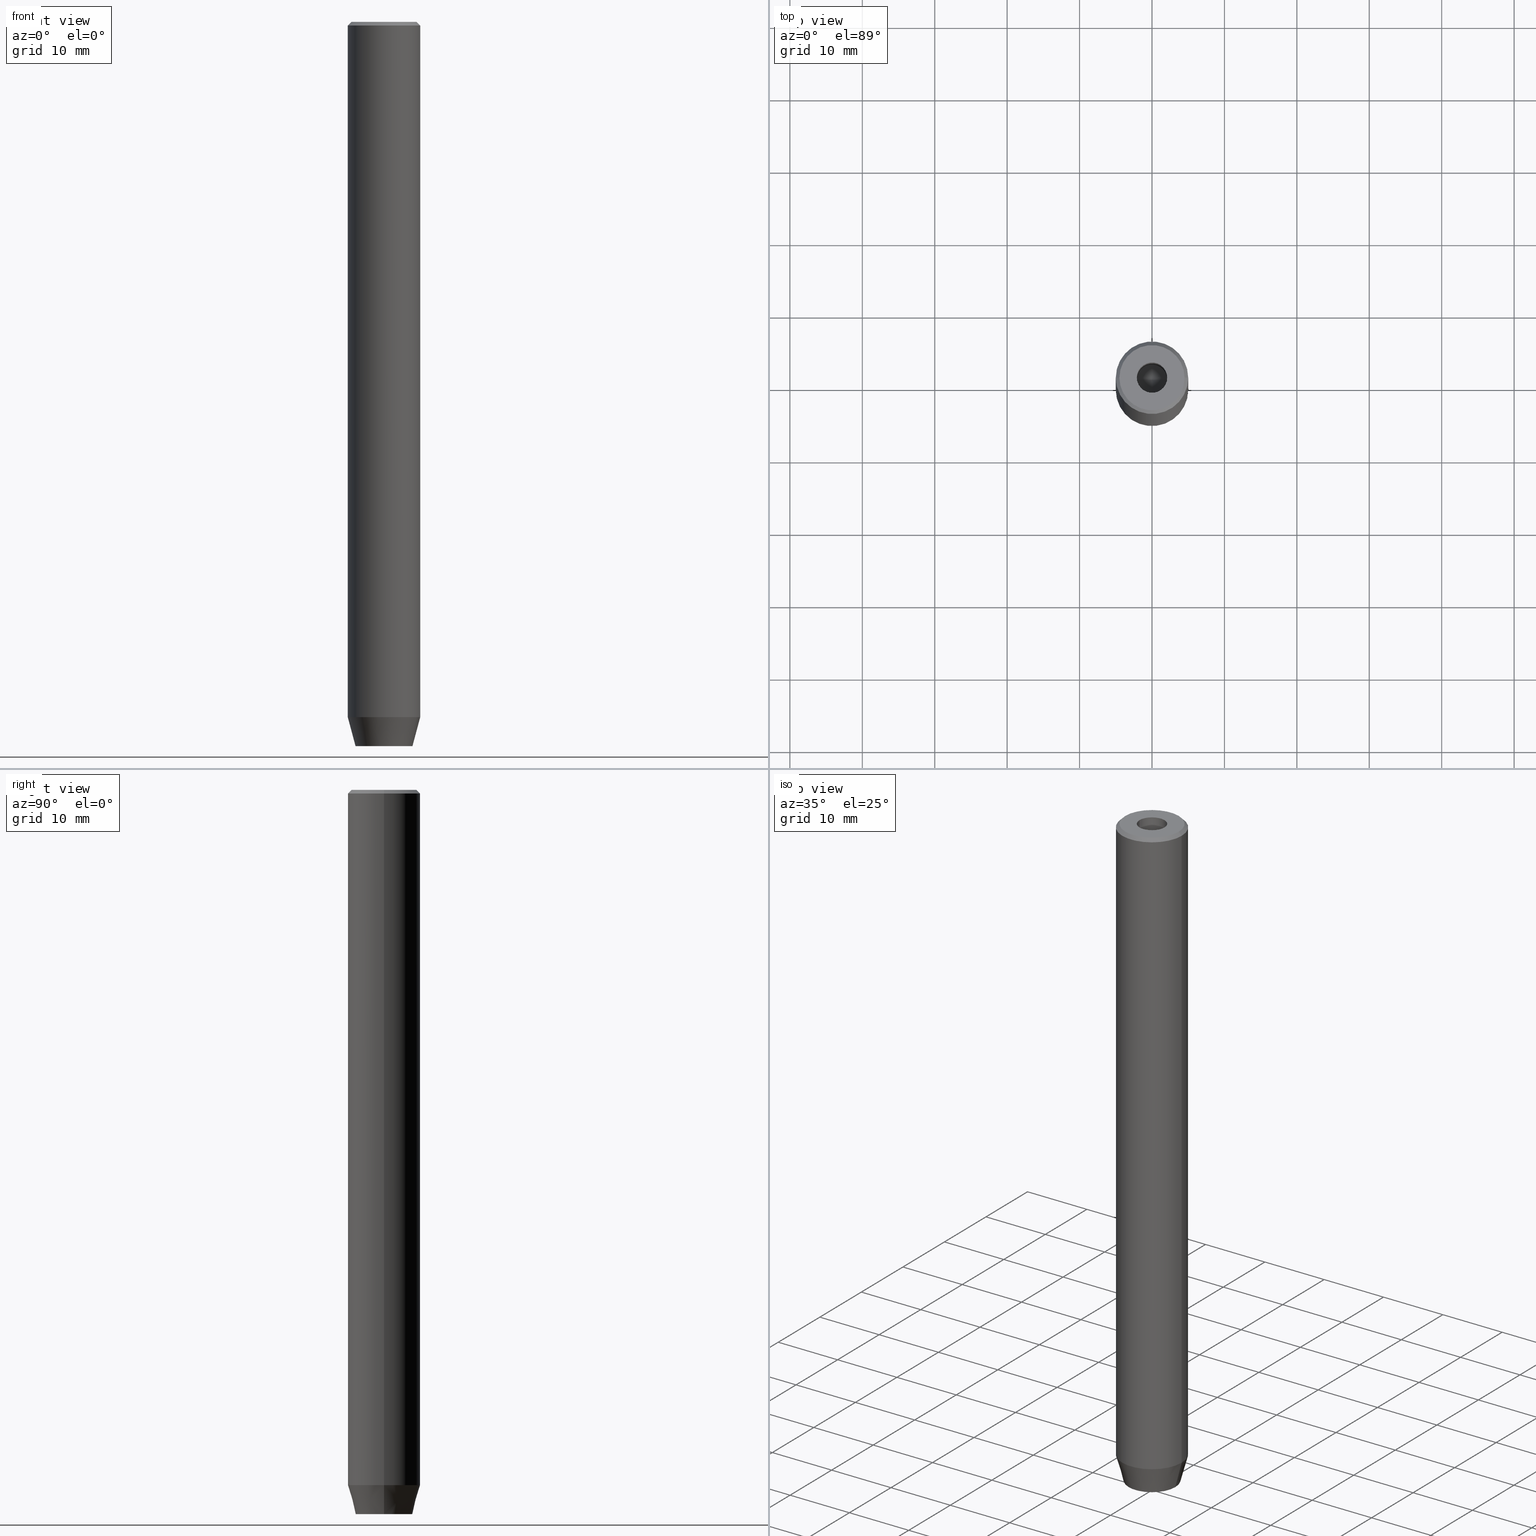
[diagram: canonical four-view strip — front | top / right | iso, engineering-drawing reading convention]
A machine part, canonical four-view strip (front | top / right | iso — engineering-drawing reading convention). The complete STEP part file that produces these views, byte-faithful:
ISO-10303-21;
HEADER;
FILE_DESCRIPTION (( 'STEP AP203' ),
    '1' );
FILE_NAME ('971d.STEP',
    '2024-01-02T21:57:42',
    ( '' ),
    ( '' ),
    'SwSTEP 2.0',
    'SolidWorks 2019',
    '' );
FILE_SCHEMA (( 'CONFIG_CONTROL_DESIGN' ));
ENDSEC;

DATA;
#1 = EDGE_LOOP ( 'NONE', ( #557, #401, #285, #84, #525, #576 ) ) ;
#2 = EDGE_CURVE ( 'NONE', #250, #122, #245, .T. ) ;
#3 = CARTESIAN_POINT ( 'NONE',  ( 5.000000000000000000, 0.000000000000000000, 0.000000000000000000 ) ) ;
#4 = EDGE_LOOP ( 'NONE', ( #151, #197, #271, #32 ) ) ;
#5 = CARTESIAN_POINT ( 'NONE',  ( 2.000000000000000888, -1.154700538379252572, -97.20000000000000284 ) ) ;
#6 = FACE_OUTER_BOUND ( 'NONE', #238, .T. ) ;
#7 = EDGE_CURVE ( 'NONE', #330, #459, #223, .T. ) ;
#8 = VECTOR ( 'NONE', #89, 1000.000000000000000 ) ;
#9 = ORIENTED_EDGE ( 'NONE', *, *, #164, .F. ) ;
#10 = DIRECTION ( 'NONE',  ( -0.000000000000000000, -0.000000000000000000, 1.000000000000000000 ) ) ;
#11 = PLANE ( 'NONE',  #424 ) ;
#12 = CARTESIAN_POINT ( 'NONE',  ( -1.000000000000000444, 1.732050807568877637, -97.20000000000000284 ) ) ;
#13 = VERTEX_POINT ( 'NONE', #335 ) ;
#14 = DATE_AND_TIME ( #190, #72 ) ;
#15 = EDGE_CURVE ( 'NONE', #587, #43, #141, .T. ) ;
#16 = VECTOR ( 'NONE', #329, 1000.000000000000000 ) ;
#17 = VERTEX_POINT ( 'NONE', #205 ) ;
#18 = PERSON_AND_ORGANIZATION ( #24, #260 ) ;
#19 = DIRECTION ( 'NONE',  ( -0.5000000000000001110, 0.8660254037844385966, 0.000000000000000000 ) ) ;
#20 = ORIENTED_EDGE ( 'NONE', *, *, #265, .T. ) ;
#21 = PERSON_AND_ORGANIZATION_ROLE ( 'classification_officer' ) ;
#22 = EDGE_CURVE ( 'NONE', #348, #573, #254, .T. ) ;
#23 = APPROVAL_PERSON_ORGANIZATION ( #101, #445, #63 ) ;
#24 = PERSON ( 'NEUR�EN�', 'NEUR�EN�', 'NEUR�EN�', ('NEUR�EN�'), ('NEUR�EN�'), ('NEUR�EN�') ) ;
#25 = DIRECTION ( 'NONE',  ( 0.4999999999999996669, -0.8660254037844388186, 0.000000000000000000 ) ) ;
#26 = APPROVAL_DATE_TIME ( #365, #407 ) ;
#27 = VECTOR ( 'NONE', #399, 1000.000000000000000 ) ;
#28 = FACE_OUTER_BOUND ( 'NONE', #467, .T. ) ;
#29 = DIRECTION ( 'NONE',  ( 1.000000000000000000, 0.000000000000000000, 0.000000000000000000 ) ) ;
#30 = ORIENTED_EDGE ( 'NONE', *, *, #176, .T. ) ;
#31 = DIRECTION ( 'NONE',  ( 0.7071067811865450192, 8.659560562354902043E-17, -0.7071067811865500152 ) ) ;
#32 = ORIENTED_EDGE ( 'NONE', *, *, #269, .T. ) ;
#33 = CARTESIAN_POINT ( 'NONE',  ( 2.099999999999996980, 0.000000000000000000, -15.00000000000000000 ) ) ;
#34 = DIRECTION ( 'NONE',  ( 1.000000000000000000, 0.000000000000000000, 0.000000000000000000 ) ) ;
#35 = VECTOR ( 'NONE', #37, 1000.000000000000000 ) ;
#36 = EDGE_LOOP ( 'NONE', ( #496, #428, #569, #280 ) ) ;
#37 = DIRECTION ( 'NONE',  ( 5.633679745264339711E-16, 1.000000000000000000, 0.000000000000000000 ) ) ;
#38 = ORIENTED_EDGE ( 'NONE', *, *, #61, .T. ) ;
#39 = AXIS2_PLACEMENT_3D ( 'NONE', #231, #395, #540 ) ;
#40 = ORIENTED_EDGE ( 'NONE', *, *, #544, .T. ) ;
#41 = ADVANCED_FACE ( 'NONE', ( #211 ), #263, .F. ) ;
#42 = CARTESIAN_POINT ( 'NONE',  ( 4.500000000000017764, 5.817072295949938273E-16, 0.000000000000000000 ) ) ;
#43 = VERTEX_POINT ( 'NONE', #534 ) ;
#44 = VECTOR ( 'NONE', #111, 1000.000000000000000 ) ;
#45 = CARTESIAN_POINT ( 'NONE',  ( 5.000000000000000000, 0.000000000000000000, -96.00000000000000000 ) ) ;
#46 = VECTOR ( 'NONE', #454, 999.9999999999998863 ) ;
#47 = DIRECTION ( 'NONE',  ( -0.000000000000000000, -0.000000000000000000, 1.000000000000000000 ) ) ;
#48 = LINE ( 'NONE', #3, #492 ) ;
#49 =( NAMED_UNIT ( * ) PLANE_ANGLE_UNIT ( ) SI_UNIT ( $, .RADIAN. ) );
#50 = EDGE_CURVE ( 'NONE', #71, #538, #48, .T. ) ;
#51 = DIRECTION ( 'NONE',  ( -0.000000000000000000, -0.000000000000000000, 1.000000000000000000 ) ) ;
#52 = CYLINDRICAL_SURFACE ( 'NONE', #298, 5.000000000000000000 ) ;
#53 = DIRECTION ( 'NONE',  ( -0.000000000000000000, -0.000000000000000000, -1.000000000000000000 ) ) ;
#54 = DIRECTION ( 'NONE',  ( 0.000000000000000000, 0.000000000000000000, -1.000000000000000000 ) ) ;
#55 = DIRECTION ( 'NONE',  ( -0.000000000000000000, -0.000000000000000000, 1.000000000000000000 ) ) ;
#56 = AXIS2_PLACEMENT_3D ( 'NONE', #97, #51, #312 ) ;
#57 = CARTESIAN_POINT ( 'NONE',  ( 0.000000000000000000, 2.309401076758503812, -97.20000000000000284 ) ) ;
#58 = ORIENTED_EDGE ( 'NONE', *, *, #176, .F. ) ;
#59 = CARTESIAN_POINT ( 'NONE',  ( 2.000000000000000888, 0.000000000000000000, -97.20000000000000284 ) ) ;
#60 = CARTESIAN_POINT ( 'NONE',  ( 2.000000000000000888, 1.154700538379251462, -97.20000000000000284 ) ) ;
#61 = EDGE_CURVE ( 'NONE', #43, #163, #347, .T. ) ;
#62 = CARTESIAN_POINT ( 'NONE',  ( 2.168404344971008868E-16, -2.309401076758503812, -97.20000000000000284 ) ) ;
#63 = APPROVAL_ROLE ( '' ) ;
#64 = VECTOR ( 'NONE', #93, 1000.000000000000114 ) ;
#65 = AXIS2_PLACEMENT_3D ( 'NONE', #533, #520, #110 ) ;
#66 = ORIENTED_EDGE ( 'NONE', *, *, #350, .T. ) ;
#67 = ADVANCED_FACE ( 'NONE', ( #169 ), #105, .T. ) ;
#68 = DIRECTION ( 'NONE',  ( -0.000000000000000000, -0.000000000000000000, 1.000000000000000000 ) ) ;
#69 = DIRECTION ( 'NONE',  ( 1.000000000000000000, 0.000000000000000000, 0.000000000000000000 ) ) ;
#70 = ORIENTED_EDGE ( 'NONE', *, *, #185, .F. ) ;
#71 = VERTEX_POINT ( 'NONE', #45 ) ;
#72 = LOCAL_TIME ( 22, 57, 42.00000000000000000, #568 ) ;
#73 = LINE ( 'NONE', #33, #384 ) ;
#74 = PERSON_AND_ORGANIZATION ( #24, #260 ) ;
#75 = CIRCLE ( 'NONE', #586, 3.928203230275506996 ) ;
#76 = DIRECTION ( 'NONE',  ( 0.000000000000000000, 0.000000000000000000, -1.000000000000000000 ) ) ;
#77 = ORIENTED_EDGE ( 'NONE', *, *, #526, .F. ) ;
#78 = LINE ( 'NONE', #334, #570 ) ;
#79 = EDGE_CURVE ( 'NONE', #235, #167, #134, .T. ) ;
#80 = ORIENTED_EDGE ( 'NONE', *, *, #15, .F. ) ;
#81 = CARTESIAN_POINT ( 'NONE',  ( -1.000000000000000222, -1.732050807568877637, -97.20000000000000284 ) ) ;
#82 = LINE ( 'NONE', #299, #8 ) ;
#83 = AXIS2_PLACEMENT_3D ( 'NONE', #152, #76, #297 ) ;
#84 = ORIENTED_EDGE ( 'NONE', *, *, #79, .T. ) ;
#85 = APPLICATION_CONTEXT ( 'configuration controlled 3d designs of mechanical parts and assemblies' ) ;
#86 = EDGE_CURVE ( 'NONE', #416, #412, #214, .T. ) ;
#87 = ORIENTED_EDGE ( 'NONE', *, *, #22, .T. ) ;
#88 = CARTESIAN_POINT ( 'NONE',  ( 0.000000000000000000, 2.309401076758503812, -97.20000000000000284 ) ) ;
#89 = DIRECTION ( 'NONE',  ( -0.000000000000000000, -0.000000000000000000, 1.000000000000000000 ) ) ;
#90 = DIRECTION ( 'NONE',  ( 1.000000000000000000, 0.000000000000000000, 0.000000000000000000 ) ) ;
#91 = CARTESIAN_POINT ( 'NONE',  ( 0.000000000000000000, 0.000000000000000000, -96.00000000000000000 ) ) ;
#92 = DIRECTION ( 'NONE',  ( 5.633679745264339711E-16, 1.000000000000000000, 0.000000000000000000 ) ) ;
#93 = DIRECTION ( 'NONE',  ( -0.2588190451025210725, 3.169619151431769255E-17, 0.9659258262890680902 ) ) ;
#94 = ORIENTED_EDGE ( 'NONE', *, *, #50, .F. ) ;
#95 = DIRECTION ( 'NONE',  ( -0.000000000000000000, -0.000000000000000000, -1.000000000000000000 ) ) ;
#96 = LINE ( 'NONE', #88, #196 ) ;
#97 = CARTESIAN_POINT ( 'NONE',  ( 0.000000000000000000, 0.000000000000000000, 0.000000000000000000 ) ) ;
#98 = APPROVAL_ROLE ( '' ) ;
#99 = ORIENTED_EDGE ( 'NONE', *, *, #450, .F. ) ;
#100 = DIRECTION ( 'NONE',  ( -1.000000000000000000, 0.000000000000000000, 0.000000000000000000 ) ) ;
#101 = PERSON_AND_ORGANIZATION ( #24, #260 ) ;
#102 = ADVANCED_FACE ( 'NONE', ( #499 ), #264, .T. ) ;
#103 = ORIENTED_EDGE ( 'NONE', *, *, #514, .F. ) ;
#104 = PERSON_AND_ORGANIZATION ( #24, #260 ) ;
#105 = CONICAL_SURFACE ( 'NONE', #142, 5.000000000000000000, 0.2617993877991497964 ) ;
#106 = CARTESIAN_POINT ( 'NONE',  ( 0.000000000000000000, 0.000000000000000000, 0.000000000000000000 ) ) ;
#107 = CIRCLE ( 'NONE', #256, 5.000000000000000000 ) ;
#108 = DATE_AND_TIME ( #519, #208 ) ;
#109 = DIRECTION ( 'NONE',  ( 1.000000000000000000, 0.000000000000000000, 0.000000000000000000 ) ) ;
#110 = DIRECTION ( 'NONE',  ( 1.000000000000000000, 0.000000000000000000, 0.000000000000000000 ) ) ;
#111 = DIRECTION ( 'NONE',  ( -0.000000000000000000, -0.000000000000000000, -1.000000000000000000 ) ) ;
#112 = LINE ( 'NONE', #291, #509 ) ;
#113 = APPROVAL_PERSON_ORGANIZATION ( #18, #455, #369 ) ;
#114 = VERTEX_POINT ( 'NONE', #130 ) ;
#115 = ADVANCED_FACE ( 'NONE', ( #542 ), #52, .T. ) ;
#116 = CARTESIAN_POINT ( 'NONE',  ( 1.000000000000000444, 1.732050807568877637, -97.20000000000000284 ) ) ;
#117 = ORIENTED_EDGE ( 'NONE', *, *, #435, .F. ) ;
#118 = DIRECTION ( 'NONE',  ( -0.000000000000000000, -0.000000000000000000, 1.000000000000000000 ) ) ;
#119 = DIRECTION ( 'NONE',  ( 0.000000000000000000, 0.000000000000000000, -1.000000000000000000 ) ) ;
#120 = DIRECTION ( 'NONE',  ( 1.000000000000000000, 0.000000000000000000, 0.000000000000000000 ) ) ;
#121 = EDGE_CURVE ( 'NONE', #250, #183, #219, .T. ) ;
#122 = VERTEX_POINT ( 'NONE', #42 ) ;
#123 = DIRECTION ( 'NONE',  ( 1.000000000000000000, 0.000000000000000000, 0.000000000000000000 ) ) ;
#124 = AXIS2_PLACEMENT_3D ( 'NONE', #221, #178, #353 ) ;
#125 = DIRECTION ( 'NONE',  ( 1.000000000000000000, 0.000000000000000000, 0.000000000000000000 ) ) ;
#126 = ORIENTED_EDGE ( 'NONE', *, *, #7, .F. ) ;
#127 = DIRECTION ( 'NONE',  ( 1.000000000000000000, 0.000000000000000000, 0.000000000000000000 ) ) ;
#128 = EDGE_CURVE ( 'NONE', #355, #416, #224, .T. ) ;
#129 = VECTOR ( 'NONE', #447, 1000.000000000000114 ) ;
#130 = CARTESIAN_POINT ( 'NONE',  ( 0.000000000000000000, 2.309401076758503812, -100.0000000000000000 ) ) ;
#131 = AXIS2_PLACEMENT_3D ( 'NONE', #466, #458, #69 ) ;
#132 = CARTESIAN_POINT ( 'NONE',  ( -1.999999999999997780, 1.154700538379253238, -100.0000000000000000 ) ) ;
#133 = DIRECTION ( 'NONE',  ( 0.8660254037844385966, -0.5000000000000001110, 0.000000000000000000 ) ) ;
#134 = LINE ( 'NONE', #303, #129 ) ;
#135 = ADVANCED_FACE ( 'NONE', ( #172 ), #344, .F. ) ;
#136 = ORIENTED_EDGE ( 'NONE', *, *, #7, .T. ) ;
#137 = PLANE ( 'NONE',  #39 ) ;
#138 = LINE ( 'NONE', #308, #537 ) ;
#139 = PRODUCT_DEFINITION ( 'NEZN�M�', '', #157, #379 ) ;
#140 = DIRECTION ( 'NONE',  ( -0.000000000000000000, -0.000000000000000000, 1.000000000000000000 ) ) ;
#141 = CIRCLE ( 'NONE', #471, 3.928203230275506996 ) ;
#142 = AXIS2_PLACEMENT_3D ( 'NONE', #393, #309, #125 ) ;
#143 = ORIENTED_EDGE ( 'NONE', *, *, #477, .T. ) ;
#144 = ORIENTED_EDGE ( 'NONE', *, *, #265, .F. ) ;
#145 = DIRECTION ( 'NONE',  ( -1.000000000000000000, 0.000000000000000000, -0.000000000000000000 ) ) ;
#146 = ORIENTED_EDGE ( 'NONE', *, *, #2, .F. ) ;
#147 = CC_DESIGN_PERSON_AND_ORGANIZATION_ASSIGNMENT ( #74, #21, ( #220 ) ) ;
#148 = PERSON_AND_ORGANIZATION_ROLE ( 'creator' ) ;
#149 = DIRECTION ( 'NONE',  ( -0.8660254037844385966, -0.5000000000000001110, 0.000000000000000000 ) ) ;
#150 = COORDINATED_UNIVERSAL_TIME_OFFSET ( 1, 0, .AHEAD. ) ;
#151 = ORIENTED_EDGE ( 'NONE', *, *, #491, .F. ) ;
#152 = CARTESIAN_POINT ( 'NONE',  ( 0.000000000000000000, 0.000000000000000000, -0.4999999999999857891 ) ) ;
#153 = VERTEX_POINT ( 'NONE', #315 ) ;
#154 = CARTESIAN_POINT ( 'NONE',  ( 0.000000000000000000, 0.000000000000000000, -15.00000000000000000 ) ) ;
#155 = EDGE_CURVE ( 'NONE', #573, #114, #323, .T. ) ;
#156 = CARTESIAN_POINT ( 'NONE',  ( -1.999999999999998668, -1.154700538379252572, -100.0000000000000000 ) ) ;
#157 = PRODUCT_DEFINITION_FORMATION_WITH_SPECIFIED_SOURCE ( 'LIBOVOLN�', '', #539, .NOT_KNOWN. ) ;
#158 = DIRECTION ( 'NONE',  ( 0.8660254037844385966, 0.5000000000000001110, 0.000000000000000000 ) ) ;
#159 = ORIENTED_EDGE ( 'NONE', *, *, #15, .T. ) ;
#160 = VECTOR ( 'NONE', #385, 1000.000000000000114 ) ;
#161 = PLANE ( 'NONE',  #225 ) ;
#162 = DIRECTION ( 'NONE',  ( 1.000000000000000000, 0.000000000000000000, 0.000000000000000000 ) ) ;
#163 = VERTEX_POINT ( 'NONE', #518 ) ;
#164 = EDGE_CURVE ( 'NONE', #459, #330, #392, .T. ) ;
#165 = LINE ( 'NONE', #210, #16 ) ;
#166 = DIRECTION ( 'NONE',  ( -0.000000000000000000, -0.000000000000000000, 1.000000000000000000 ) ) ;
#167 = VERTEX_POINT ( 'NONE', #62 ) ;
#168 = LINE ( 'NONE', #498, #273 ) ;
#169 = FACE_OUTER_BOUND ( 'NONE', #261, .T. ) ;
#170 = AXIS2_PLACEMENT_3D ( 'NONE', #340, #54, #145 ) ;
#171 = AXIS2_PLACEMENT_3D ( 'NONE', #294, #243, #34 ) ;
#172 = FACE_OUTER_BOUND ( 'NONE', #434, .T. ) ;
#173 = PLANE ( 'NONE',  #229 ) ;
#174 = CARTESIAN_POINT ( 'NONE',  ( 0.000000000000000000, 0.000000000000000000, 0.000000000000000000 ) ) ;
#175 = CARTESIAN_POINT ( 'NONE',  ( 5.000000000000000000, 0.000000000000000000, -0.4999999999999857891 ) ) ;
#176 = EDGE_CURVE ( 'NONE', #330, #17, #404, .T. ) ;
#177 = CARTESIAN_POINT ( 'NONE',  ( -5.000000000000000000, 6.123233995736766282E-16, -96.00000000000000000 ) ) ;
#178 = DIRECTION ( 'NONE',  ( -1.000000000000000000, 5.633679745264339711E-16, 0.000000000000000000 ) ) ;
#179 = ADVANCED_FACE ( 'NONE', ( #552 ), #473, .T. ) ;
#180 = AXIS2_PLACEMENT_3D ( 'NONE', #154, #118, #580 ) ;
#181 = ORIENTED_EDGE ( 'NONE', *, *, #242, .T. ) ;
#182 = FACE_OUTER_BOUND ( 'NONE', #321, .T. ) ;
#183 = VERTEX_POINT ( 'NONE', #279 ) ;
#184 = DIRECTION ( 'NONE',  ( 0.8660254037844385966, -0.5000000000000001110, 0.000000000000000000 ) ) ;
#185 = EDGE_CURVE ( 'NONE', #587, #71, #206, .T. ) ;
#186 = CARTESIAN_POINT ( 'NONE',  ( -2.099999999999997868, 2.571758278209438999E-16, 0.000000000000000000 ) ) ;
#187 = ORIENTED_EDGE ( 'NONE', *, *, #427, .T. ) ;
#188 = DIRECTION ( 'NONE',  ( -0.000000000000000000, 0.000000000000000000, -1.000000000000000000 ) ) ;
#189 = CARTESIAN_POINT ( 'NONE',  ( 0.000000000000000000, 0.000000000000000000, -97.20000000000000284 ) ) ;
#190 = CALENDAR_DATE ( 2024, 2, 1 ) ;
#191 = EDGE_LOOP ( 'NONE', ( #443, #336 ) ) ;
#192 = LOCAL_TIME ( 22, 57, 42.00000000000000000, #468 ) ;
#193 = PLANE ( 'NONE',  #124 ) ;
#194 = PERSON_AND_ORGANIZATION ( #24, #260 ) ;
#195 = APPROVAL_DATE_TIME ( #14, #445 ) ;
#196 = VECTOR ( 'NONE', #53, 1000.000000000000000 ) ;
#197 = ORIENTED_EDGE ( 'NONE', *, *, #529, .T. ) ;
#198 = EDGE_LOOP ( 'NONE', ( #126, #30, #440, #117 ) ) ;
#199 = COORDINATED_UNIVERSAL_TIME_OFFSET ( 1, 0, .AHEAD. ) ;
#200 = FACE_OUTER_BOUND ( 'NONE', #345, .T. ) ;
#201 = PERSON_AND_ORGANIZATION ( #24, #260 ) ;
#202 = EDGE_LOOP ( 'NONE', ( #300, #319, #283, #460 ) ) ;
#203 = PLANE ( 'NONE',  #247 ) ;
#204 = PRODUCT_RELATED_PRODUCT_CATEGORY ( 'detail', '', ( #539 ) ) ;
#205 = CARTESIAN_POINT ( 'NONE',  ( -2.099999999999998757, 2.571758278209439985E-16, -1.990051048614449116E-16 ) ) ;
#206 = LINE ( 'NONE', #431, #160 ) ;
#207 = DIRECTION ( 'NONE',  ( 0.5000000000000001110, 0.8660254037844385966, -0.000000000000000000 ) ) ;
#208 = LOCAL_TIME ( 22, 57, 42.00000000000000000, #199 ) ;
#209 = ADVANCED_FACE ( 'NONE', ( #479 ), #343, .T. ) ;
#210 = CARTESIAN_POINT ( 'NONE',  ( 2.168404344971008868E-16, -2.309401076758503812, -97.20000000000000284 ) ) ;
#211 = FACE_OUTER_BOUND ( 'NONE', #448, .T. ) ;
#212 = LINE ( 'NONE', #446, #528 ) ;
#213 = CARTESIAN_POINT ( 'NONE',  ( -1.999999999999997780, 1.154700538379253238, -97.20000000000000284 ) ) ;
#214 = LINE ( 'NONE', #487, #314 ) ;
#215 = CONICAL_SURFACE ( 'NONE', #180, 2.099999999999996980, 1.029744258676652535 ) ;
#216 = AXIS2_PLACEMENT_3D ( 'NONE', #91, #10, #490 ) ;
#217 = ADVANCED_FACE ( 'NONE', ( #28 ), #215, .F. ) ;
#218 = LINE ( 'NONE', #502, #46 ) ;
#219 = LINE ( 'NONE', #453, #27 ) ;
#220 = SECURITY_CLASSIFICATION ( '', '', #465 ) ;
#221 = CARTESIAN_POINT ( 'NONE',  ( -1.999999999999998224, 1.126735949052866956E-15, -97.20000000000000284 ) ) ;
#222 = CC_DESIGN_PERSON_AND_ORGANIZATION_ASSIGNMENT ( #511, #326, ( #157 ) ) ;
#223 = CIRCLE ( 'NONE', #390, 2.099999999999996980 ) ;
#224 = LINE ( 'NONE', #584, #363 ) ;
#225 = AXIS2_PLACEMENT_3D ( 'NONE', #527, #25, #423 ) ;
#226 = DIRECTION ( 'NONE',  ( -0.000000000000000000, -0.000000000000000000, -1.000000000000000000 ) ) ;
#227 = PRODUCT_DEFINITION_SHAPE ( 'NONE', 'NONE',  #139 ) ;
#228 = CARTESIAN_POINT ( 'NONE',  ( -1.999999999999997780, 1.154700538379253238, -97.20000000000000284 ) ) ;
#229 = AXIS2_PLACEMENT_3D ( 'NONE', #59, #546, #188 ) ;
#230 = EDGE_LOOP ( 'NONE', ( #66, #408, #328, #40 ) ) ;
#231 = CARTESIAN_POINT ( 'NONE',  ( 0.000000000000000000, 0.000000000000000000, 0.000000000000000000 ) ) ;
#232 = FACE_OUTER_BOUND ( 'NONE', #258, .T. ) ;
#233 = LINE ( 'NONE', #564, #485 ) ;
#234 = AXIS2_PLACEMENT_3D ( 'NONE', #581, #166, #29 ) ;
#235 = VERTEX_POINT ( 'NONE', #380 ) ;
#236 = COORDINATED_UNIVERSAL_TIME_OFFSET ( 1, 0, .AHEAD. ) ;
#237 = ADVANCED_FACE ( 'NONE', ( #377 ), #249, .F. ) ;
#238 = EDGE_LOOP ( 'NONE', ( #267, #579, #99, #562 ) ) ;
#239 = ORIENTED_EDGE ( 'NONE', *, *, #86, .T. ) ;
#240 = PERSON_AND_ORGANIZATION_ROLE ( 'design_owner' ) ;
#241 = DIRECTION ( 'NONE',  ( 1.000000000000000000, 0.000000000000000000, 0.000000000000000000 ) ) ;
#242 = EDGE_CURVE ( 'NONE', #167, #412, #165, .T. ) ;
#243 = DIRECTION ( 'NONE',  ( -0.000000000000000000, -0.000000000000000000, 1.000000000000000000 ) ) ;
#244 = DIRECTION ( 'NONE',  ( 1.000000000000000000, 0.000000000000000000, 0.000000000000000000 ) ) ;
#245 = CIRCLE ( 'NONE', #484, 4.500000000000017764 ) ;
#246 = DATE_TIME_ROLE ( 'classification_date' ) ;
#247 = AXIS2_PLACEMENT_3D ( 'NONE', #116, #207, #476 ) ;
#248 = ORIENTED_EDGE ( 'NONE', *, *, #565, .T. ) ;
#249 = PLANE ( 'NONE',  #433 ) ;
#250 = VERTEX_POINT ( 'NONE', #530 ) ;
#251 = ORIENTED_EDGE ( 'NONE', *, *, #2, .T. ) ;
#252 = EDGE_CURVE ( 'NONE', #348, #478, #337, .T. ) ;
#253 = FACE_OUTER_BOUND ( 'NONE', #198, .T. ) ;
#254 = LINE ( 'NONE', #213, #44 ) ;
#255 = ORIENTED_EDGE ( 'NONE', *, *, #287, .F. ) ;
#256 = AXIS2_PLACEMENT_3D ( 'NONE', #318, #140, #123 ) ;
#257 = FACE_OUTER_BOUND ( 'NONE', #420, .T. ) ;
#258 = EDGE_LOOP ( 'NONE', ( #187, #391, #438, #94 ) ) ;
#259 = ADVANCED_FACE ( 'NONE', ( #253 ), #382, .F. ) ;
#260 = ORGANIZATION ( 'NEUR�EN�', 'NEUR�EN�', '' ) ;
#261 = EDGE_LOOP ( 'NONE', ( #159, #38, #366, #70 ) ) ;
#262 = CARTESIAN_POINT ( 'NONE',  ( -1.999999999999998668, -1.154700538379252572, -97.20000000000000284 ) ) ;
#263 = CONICAL_SURFACE ( 'NONE', #234, 2.099999999999996980, 1.029744258676652535 ) ;
#264 = CONICAL_SURFACE ( 'NONE', #517, 4.500000000000017764, 0.7853981633974447263 ) ;
#265 = EDGE_CURVE ( 'NONE', #582, #459, #73, .T. ) ;
#266 = CYLINDRICAL_SURFACE ( 'NONE', #56, 2.099999999999997868 ) ;
#267 = ORIENTED_EDGE ( 'NONE', *, *, #386, .T. ) ;
#268 = DIRECTION ( 'NONE',  ( -0.000000000000000000, -0.000000000000000000, -1.000000000000000000 ) ) ;
#269 = EDGE_CURVE ( 'NONE', #538, #183, #494, .T. ) ;
#270 = DIRECTION ( 'NONE',  ( -0.8571673007021113344, 1.049727191138617463E-16, 0.5150380749100558209 ) ) ;
#271 = ORIENTED_EDGE ( 'NONE', *, *, #50, .T. ) ;
#272 = CARTESIAN_POINT ( 'NONE',  ( -2.099999999999996980, 2.571758278209438013E-16, -15.00000000000000000 ) ) ;
#273 = VECTOR ( 'NONE', #184, 1000.000000000000000 ) ;
#274 = DIRECTION ( 'NONE',  ( 0.000000000000000000, 0.000000000000000000, 1.000000000000000000 ) ) ;
#275 = LINE ( 'NONE', #60, #560 ) ;
#276 = CARTESIAN_POINT ( 'NONE',  ( -1.000000000000000444, 1.732050807568877637, -100.0000000000000000 ) ) ;
#277 = CALENDAR_DATE ( 2024, 2, 1 ) ;
#278 = EDGE_CURVE ( 'NONE', #122, #538, #574, .T. ) ;
#279 = CARTESIAN_POINT ( 'NONE',  ( -5.000000000000000000, 6.123233995736766282E-16, -0.4999999999999857891 ) ) ;
#280 = ORIENTED_EDGE ( 'NONE', *, *, #121, .F. ) ;
#281 = APPROVAL_STATUS ( 'not_yet_approved' ) ;
#282 = AXIS2_PLACEMENT_3D ( 'NONE', #536, #313, #437 ) ;
#283 = ORIENTED_EDGE ( 'NONE', *, *, #185, .T. ) ;
#284 = PERSON_AND_ORGANIZATION_ROLE ( 'creator' ) ;
#285 = ORIENTED_EDGE ( 'NONE', *, *, #287, .T. ) ;
#286 = APPROVAL_STATUS ( 'not_yet_approved' ) ;
#287 = EDGE_CURVE ( 'NONE', #13, #235, #112, .T. ) ;
#288 = CARTESIAN_POINT ( 'NONE',  ( 0.000000000000000000, 0.000000000000000000, -100.0000000000000000 ) ) ;
#289 = FACE_OUTER_BOUND ( 'NONE', #230, .T. ) ;
#290 = APPROVAL_DATE_TIME ( #515, #455 ) ;
#291 = CARTESIAN_POINT ( 'NONE',  ( 2.000000000000000888, 0.000000000000000000, -97.20000000000000284 ) ) ;
#292 = CARTESIAN_POINT ( 'NONE',  ( 0.000000000000000000, 0.000000000000000000, 0.000000000000000000 ) ) ;
#293 = CARTESIAN_POINT ( 'NONE',  ( -2.099999999999996980, 2.571758278209438013E-16, -15.00000000000000000 ) ) ;
#294 = CARTESIAN_POINT ( 'NONE',  ( 0.000000000000000000, 0.000000000000000000, -96.00000000000000000 ) ) ;
#295 = EDGE_CURVE ( 'NONE', #183, #538, #456, .T. ) ;
#296 = ORIENTED_EDGE ( 'NONE', *, *, #338, .F. ) ;
#297 = DIRECTION ( 'NONE',  ( 1.000000000000000000, 0.000000000000000000, 0.000000000000000000 ) ) ;
#298 = AXIS2_PLACEMENT_3D ( 'NONE', #174, #488, #90 ) ;
#299 = CARTESIAN_POINT ( 'NONE',  ( 2.099999999999997868, 0.000000000000000000, 0.000000000000000000 ) ) ;
#300 = ORIENTED_EDGE ( 'NONE', *, *, #61, .F. ) ;
#301 = ADVANCED_FACE ( 'NONE', ( #289 ), #203, .F. ) ;
#302 = VECTOR ( 'NONE', #268, 1000.000000000000000 ) ;
#303 = CARTESIAN_POINT ( 'NONE',  ( 0.9999999999999997780, -1.732050807568878747, -97.20000000000000284 ) ) ;
#304 = ORIENTED_EDGE ( 'NONE', *, *, #128, .F. ) ;
#305 = AXIS2_PLACEMENT_3D ( 'NONE', #12, #19, #149 ) ;
#306 = DIRECTION ( 'NONE',  ( 0.000000000000000000, 0.000000000000000000, -1.000000000000000000 ) ) ;
#307 = CARTESIAN_POINT ( 'NONE',  ( 0.000000000000000000, 0.000000000000000000, -1.990051048614449116E-16 ) ) ;
#308 = CARTESIAN_POINT ( 'NONE',  ( -1.999999999999998224, 1.126735949052866956E-15, -97.20000000000000284 ) ) ;
#309 = DIRECTION ( 'NONE',  ( -0.000000000000000000, -0.000000000000000000, 1.000000000000000000 ) ) ;
#310 = EDGE_LOOP ( 'NONE', ( #80, #103 ) ) ;
#311 = FACE_OUTER_BOUND ( 'NONE', #558, .T. ) ;
#312 = DIRECTION ( 'NONE',  ( 1.000000000000000000, 0.000000000000000000, 0.000000000000000000 ) ) ;
#313 = DIRECTION ( 'NONE',  ( -0.000000000000000000, -0.000000000000000000, 1.000000000000000000 ) ) ;
#314 = VECTOR ( 'NONE', #351, 1000.000000000000114 ) ;
#315 = CARTESIAN_POINT ( 'NONE',  ( 2.099999999999998757, 0.000000000000000000, -1.990051048614449116E-16 ) ) ;
#316 = CIRCLE ( 'NONE', #216, 5.000000000000000000 ) ;
#317 = APPROVAL_STATUS ( 'not_yet_approved' ) ;
#318 = CARTESIAN_POINT ( 'NONE',  ( 0.000000000000000000, 0.000000000000000000, -96.00000000000000000 ) ) ;
#319 = ORIENTED_EDGE ( 'NONE', *, *, #514, .T. ) ;
#320 = EDGE_CURVE ( 'NONE', #17, #153, #463, .T. ) ;
#321 = EDGE_LOOP ( 'NONE', ( #251, #414 ) ) ;
#322 = DATE_TIME_ROLE ( 'creation_date' ) ;
#323 = LINE ( 'NONE', #276, #415 ) ;
#324 = ADVANCED_FACE ( 'NONE', ( #200 ), #161, .F. ) ;
#325 = VECTOR ( 'NONE', #31, 1000.000000000000000 ) ;
#326 = PERSON_AND_ORGANIZATION_ROLE ( 'design_supplier' ) ;
#327 = MECHANICAL_CONTEXT ( 'NONE', #383, 'mechanical' ) ;
#328 = ORIENTED_EDGE ( 'NONE', *, *, #396, .F. ) ;
#329 = DIRECTION ( 'NONE',  ( -0.000000000000000000, -0.000000000000000000, -1.000000000000000000 ) ) ;
#330 = VERTEX_POINT ( 'NONE', #293 ) ;
#331 = DIRECTION ( 'NONE',  ( 1.000000000000000000, 0.000000000000000000, 0.000000000000000000 ) ) ;
#332 = VECTOR ( 'NONE', #158, 1000.000000000000000 ) ;
#333 = CC_DESIGN_PERSON_AND_ORGANIZATION_ASSIGNMENT ( #201, #148, ( #139 ) ) ;
#334 = CARTESIAN_POINT ( 'NONE',  ( -1.000000000000000222, -1.732050807568877637, -97.20000000000000284 ) ) ;
#335 = CARTESIAN_POINT ( 'NONE',  ( 2.000000000000000888, 1.154700538379251462, -97.20000000000000284 ) ) ;
#336 = ORIENTED_EDGE ( 'NONE', *, *, #320, .F. ) ;
#337 = LINE ( 'NONE', #373, #332 ) ;
#338 = EDGE_CURVE ( 'NONE', #167, #388, #78, .T. ) ;
#339 = ORIENTED_EDGE ( 'NONE', *, *, #252, .F. ) ;
#340 = CARTESIAN_POINT ( 'NONE',  ( 0.000000000000000000, 3.928203230275506996, -100.0000000000000000 ) ) ;
#341 = ADVANCED_FACE ( 'NONE', ( #6 ), #193, .F. ) ;
#342 = ORIENTED_EDGE ( 'NONE', *, *, #278, .F. ) ;
#343 = CONICAL_SURFACE ( 'NONE', #171, 5.000000000000000000, 0.2617993877991497964 ) ;
#344 = PLANE ( 'NONE',  #305 ) ;
#345 = EDGE_LOOP ( 'NONE', ( #239, #352, #510, #376 ) ) ;
#346 = DIRECTION ( 'NONE',  ( 1.000000000000000000, 0.000000000000000000, 0.000000000000000000 ) ) ;
#347 = LINE ( 'NONE', #177, #64 ) ;
#348 = VERTEX_POINT ( 'NONE', #228 ) ;
#349 = CARTESIAN_POINT ( 'NONE',  ( 3.928203230275506996, 0.000000000000000000, -100.0000000000000000 ) ) ;
#350 = EDGE_CURVE ( 'NONE', #114, #355, #168, .T. ) ;
#351 = DIRECTION ( 'NONE',  ( -0.8660254037844388186, -0.4999999999999996114, 0.000000000000000000 ) ) ;
#352 = ORIENTED_EDGE ( 'NONE', *, *, #242, .F. ) ;
#353 = DIRECTION ( 'NONE',  ( -5.633679745264339711E-16, -1.000000000000000000, 0.000000000000000000 ) ) ;
#354 = AXIS2_PLACEMENT_3D ( 'NONE', #482, #419, #331 ) ;
#355 = VERTEX_POINT ( 'NONE', #402 ) ;
#356 = CARTESIAN_POINT ( 'NONE',  ( -1.999999999999998224, 1.126735949052866956E-15, -100.0000000000000000 ) ) ;
#357 = DIRECTION ( 'NONE',  ( -0.000000000000000000, -0.000000000000000000, 1.000000000000000000 ) ) ;
#358 = MANIFOLD_SOLID_BREP ( 'Vrt�k z�vitn�ku pro M5 z�vit1', #506 ) ;
#359 = DIRECTION ( 'NONE',  ( 0.000000000000000000, 0.000000000000000000, -1.000000000000000000 ) ) ;
#360 = CC_DESIGN_PERSON_AND_ORGANIZATION_ASSIGNMENT ( #194, #240, ( #539 ) ) ;
#361 = ORIENTED_EDGE ( 'NONE', *, *, #121, .T. ) ;
#362 = ADVANCED_BREP_SHAPE_REPRESENTATION ( '971d', ( #358, #503 ), #452 ) ;
#363 = VECTOR ( 'NONE', #389, 1000.000000000000000 ) ;
#364 = CARTESIAN_POINT ( 'NONE',  ( 0.000000000000000000, 0.000000000000000000, 0.000000000000000000 ) ) ;
#365 = DATE_AND_TIME ( #277, #192 ) ;
#366 = ORIENTED_EDGE ( 'NONE', *, *, #427, .F. ) ;
#367 = EDGE_CURVE ( 'NONE', #582, #330, #397, .T. ) ;
#368 = ORIENTED_EDGE ( 'NONE', *, *, #544, .F. ) ;
#369 = APPROVAL_ROLE ( '' ) ;
#370 = ORIENTED_EDGE ( 'NONE', *, *, #350, .F. ) ;
#371 = ADVANCED_FACE ( 'NONE', ( #232 ), #549, .T. ) ;
#372 = CC_DESIGN_APPROVAL ( #455, ( #157 ) ) ;
#373 = CARTESIAN_POINT ( 'NONE',  ( -1.000000000000000444, 1.732050807568877637, -97.20000000000000284 ) ) ;
#374 = CIRCLE ( 'NONE', #508, 4.500000000000017764 ) ;
#375 = CALENDAR_DATE ( 2024, 2, 1 ) ;
#376 = ORIENTED_EDGE ( 'NONE', *, *, #585, .T. ) ;
#377 = FACE_OUTER_BOUND ( 'NONE', #504, .T. ) ;
#378 = ORIENTED_EDGE ( 'NONE', *, *, #269, .F. ) ;
#379 = DESIGN_CONTEXT ( 'detailed design', #85, 'design' ) ;
#380 = CARTESIAN_POINT ( 'NONE',  ( 2.000000000000000888, -1.154700538379252572, -97.20000000000000284 ) ) ;
#381 = CC_DESIGN_PERSON_AND_ORGANIZATION_ASSIGNMENT ( #104, #284, ( #157 ) ) ;
#382 = CYLINDRICAL_SURFACE ( 'NONE', #65, 2.099999999999997868 ) ;
#383 = APPLICATION_CONTEXT ( 'configuration controlled 3d designs of mechanical parts and assemblies' ) ;
#384 = VECTOR ( 'NONE', #571, 1000.000000000000000 ) ;
#385 = DIRECTION ( 'NONE',  ( 0.2588190451025210725, 0.000000000000000000, 0.9659258262890680902 ) ) ;
#386 = EDGE_CURVE ( 'NONE', #481, #573, #410, .T. ) ;
#387 = CARTESIAN_POINT ( 'NONE',  ( 2.099999999999996980, 0.000000000000000000, -15.00000000000000000 ) ) ;
#388 = VERTEX_POINT ( 'NONE', #486 ) ;
#389 = DIRECTION ( 'NONE',  ( 0.000000000000000000, -1.000000000000000000, 0.000000000000000000 ) ) ;
#390 = AXIS2_PLACEMENT_3D ( 'NONE', #483, #425, #120 ) ;
#391 = ORIENTED_EDGE ( 'NONE', *, *, #491, .T. ) ;
#392 = CIRCLE ( 'NONE', #131, 2.099999999999996980 ) ;
#393 = CARTESIAN_POINT ( 'NONE',  ( 0.000000000000000000, 0.000000000000000000, -96.00000000000000000 ) ) ;
#394 =( LENGTH_UNIT ( ) NAMED_UNIT ( * ) SI_UNIT ( .MILLI., .METRE. ) );
#395 = DIRECTION ( 'NONE',  ( 0.000000000000000000, -0.000000000000000000, 1.000000000000000000 ) ) ;
#396 = EDGE_CURVE ( 'NONE', #478, #13, #212, .T. ) ;
#397 = LINE ( 'NONE', #272, #403 ) ;
#398 = CC_DESIGN_SECURITY_CLASSIFICATION ( #220, ( #157 ) ) ;
#399 = DIRECTION ( 'NONE',  ( -0.7071067811865450192, 0.000000000000000000, -0.7071067811865500152 ) ) ;
#400 = LINE ( 'NONE', #5, #302 ) ;
#401 = ORIENTED_EDGE ( 'NONE', *, *, #396, .T. ) ;
#402 = CARTESIAN_POINT ( 'NONE',  ( 2.000000000000000888, 1.154700538379251462, -100.0000000000000000 ) ) ;
#403 = VECTOR ( 'NONE', #270, 1000.000000000000000 ) ;
#404 = LINE ( 'NONE', #186, #578 ) ;
#405 = FACE_OUTER_BOUND ( 'NONE', #1, .T. ) ;
#406 = AXIS2_PLACEMENT_3D ( 'NONE', #307, #47, #127 ) ;
#407 = APPROVAL ( #286, 'NEUR�EN�' ) ;
#408 = ORIENTED_EDGE ( 'NONE', *, *, #430, .F. ) ;
#409 = ORIENTED_EDGE ( 'NONE', *, *, #367, .T. ) ;
#410 = LINE ( 'NONE', #356, #35 ) ;
#411 = LOCAL_TIME ( 22, 57, 42.00000000000000000, #150 ) ;
#412 = VERTEX_POINT ( 'NONE', #551 ) ;
#413 = PERSON_AND_ORGANIZATION ( #24, #260 ) ;
#414 = ORIENTED_EDGE ( 'NONE', *, *, #501, .T. ) ;
#415 = VECTOR ( 'NONE', #512, 1000.000000000000000 ) ;
#416 = VERTEX_POINT ( 'NONE', #559 ) ;
#417 = CALENDAR_DATE ( 2024, 2, 1 ) ;
#418 = CC_DESIGN_DATE_AND_TIME_ASSIGNMENT ( #108, #246, ( #220 ) ) ;
#419 = DIRECTION ( 'NONE',  ( -0.000000000000000000, -0.000000000000000000, 1.000000000000000000 ) ) ;
#420 = EDGE_LOOP ( 'NONE', ( #58, #9, #548, #248 ) ) ;
#421 = DATE_AND_TIME ( #417, #411 ) ;
#422 = LINE ( 'NONE', #262, #495 ) ;
#423 = DIRECTION ( 'NONE',  ( 0.8660254037844388186, 0.4999999999999996669, 0.000000000000000000 ) ) ;
#424 = AXIS2_PLACEMENT_3D ( 'NONE', #189, #359, #555 ) ;
#425 = DIRECTION ( 'NONE',  ( -0.000000000000000000, -0.000000000000000000, 1.000000000000000000 ) ) ;
#426 = CARTESIAN_POINT ( 'NONE',  ( 0.000000000000000000, 0.000000000000000000, -0.4999999999999857891 ) ) ;
#427 = EDGE_CURVE ( 'NONE', #71, #163, #107, .T. ) ;
#428 = ORIENTED_EDGE ( 'NONE', *, *, #278, .T. ) ;
#429 = CARTESIAN_POINT ( 'NONE',  ( 4.500000000000017764, 5.510910596163111249E-16, 0.000000000000000000 ) ) ;
#430 = EDGE_CURVE ( 'NONE', #13, #355, #275, .T. ) ;
#431 = CARTESIAN_POINT ( 'NONE',  ( 5.000000000000000000, 0.000000000000000000, -96.00000000000000000 ) ) ;
#432 = DIRECTION ( 'NONE',  ( -0.000000000000000000, -0.000000000000000000, 1.000000000000000000 ) ) ;
#433 = AXIS2_PLACEMENT_3D ( 'NONE', #81, #577, #575 ) ;
#434 = EDGE_LOOP ( 'NONE', ( #543, #368, #339, #87 ) ) ;
#435 = EDGE_CURVE ( 'NONE', #459, #153, #82, .T. ) ;
#436 = UNCERTAINTY_MEASURE_WITH_UNIT (LENGTH_MEASURE( 1.000000000000000082E-05 ), #394, 'distance_accuracy_value', 'NONE');
#437 = DIRECTION ( 'NONE',  ( 1.000000000000000000, 0.000000000000000000, 0.000000000000000000 ) ) ;
#438 = ORIENTED_EDGE ( 'NONE', *, *, #295, .T. ) ;
#439 = DIRECTION ( 'NONE',  ( -1.000000000000000000, 0.000000000000000000, 0.000000000000000000 ) ) ;
#440 = ORIENTED_EDGE ( 'NONE', *, *, #320, .T. ) ;
#441 = CC_DESIGN_APPROVAL ( #445, ( #139 ) ) ;
#442 = CC_DESIGN_APPROVAL ( #407, ( #220 ) ) ;
#443 = ORIENTED_EDGE ( 'NONE', *, *, #565, .F. ) ;
#444 = AXIS2_PLACEMENT_3D ( 'NONE', #364, #561, #100 ) ;
#445 = APPROVAL ( #281, 'NEUR�EN�' ) ;
#446 = CARTESIAN_POINT ( 'NONE',  ( 1.000000000000000444, 1.732050807568877637, -97.20000000000000284 ) ) ;
#447 = DIRECTION ( 'NONE',  ( -0.8660254037844388186, -0.4999999999999996114, 0.000000000000000000 ) ) ;
#448 = EDGE_LOOP ( 'NONE', ( #489, #20, #567 ) ) ;
#449 =( NAMED_UNIT ( * ) SI_UNIT ( $, .STERADIAN. ) SOLID_ANGLE_UNIT ( ) );
#450 = EDGE_CURVE ( 'NONE', #388, #348, #138, .T. ) ;
#451 = PLANE ( 'NONE',  #170 ) ;
#452 =( GEOMETRIC_REPRESENTATION_CONTEXT ( 3 ) GLOBAL_UNCERTAINTY_ASSIGNED_CONTEXT ( ( #436 ) ) GLOBAL_UNIT_ASSIGNED_CONTEXT ( ( #394, #49, #449 ) ) REPRESENTATION_CONTEXT ( 'NONE', 'WORKASPACE' ) );
#453 = CARTESIAN_POINT ( 'NONE',  ( -4.500000000000017764, 0.000000000000000000, 0.000000000000000000 ) ) ;
#454 = DIRECTION ( 'NONE',  ( -0.8660254037844387076, 0.5000000000000001110, 0.000000000000000000 ) ) ;
#455 = APPROVAL ( #317, 'NEUR�EN�' ) ;
#456 = CIRCLE ( 'NONE', #83, 5.000000000000000000 ) ;
#457 = DIRECTION ( 'NONE',  ( -0.8660254037844387076, 0.5000000000000001110, 0.000000000000000000 ) ) ;
#458 = DIRECTION ( 'NONE',  ( -0.000000000000000000, -0.000000000000000000, 1.000000000000000000 ) ) ;
#459 = VERTEX_POINT ( 'NONE', #387 ) ;
#460 = ORIENTED_EDGE ( 'NONE', *, *, #529, .F. ) ;
#461 = ADVANCED_FACE ( 'NONE', ( #583, #507 ), #451, .T. ) ;
#462 = LOCAL_TIME ( 22, 57, 42.00000000000000000, #236 ) ;
#463 = CIRCLE ( 'NONE', #354, 2.099999999999998757 ) ;
#464 = EDGE_LOOP ( 'NONE', ( #342, #146, #361, #378 ) ) ;
#465 = SECURITY_CLASSIFICATION_LEVEL ( 'unclassified' ) ;
#466 = CARTESIAN_POINT ( 'NONE',  ( 0.000000000000000000, 0.000000000000000000, -15.00000000000000000 ) ) ;
#467 = EDGE_LOOP ( 'NONE', ( #144, #409, #136 ) ) ;
#468 = COORDINATED_UNIVERSAL_TIME_OFFSET ( 1, 0, .AHEAD. ) ;
#469 = DIRECTION ( 'NONE',  ( 0.000000000000000000, -1.000000000000000000, 0.000000000000000000 ) ) ;
#470 = ADVANCED_FACE ( 'NONE', ( #257 ), #266, .F. ) ;
#471 = AXIS2_PLACEMENT_3D ( 'NONE', #474, #531, #244 ) ;
#472 = DIRECTION ( 'NONE',  ( 1.000000000000000000, 0.000000000000000000, 0.000000000000000000 ) ) ;
#473 = CONICAL_SURFACE ( 'NONE', #444, 4.500000000000017764, 0.7853981633974447263 ) ;
#474 = CARTESIAN_POINT ( 'NONE',  ( 0.000000000000000000, 0.000000000000000000, -100.0000000000000000 ) ) ;
#475 = ORIENTED_EDGE ( 'NONE', *, *, #155, .F. ) ;
#476 = DIRECTION ( 'NONE',  ( -0.8660254037844385966, 0.5000000000000001110, 0.000000000000000000 ) ) ;
#477 = EDGE_CURVE ( 'NONE', #412, #481, #218, .T. ) ;
#478 = VERTEX_POINT ( 'NONE', #57 ) ;
#479 = FACE_OUTER_BOUND ( 'NONE', #202, .T. ) ;
#480 = ADVANCED_FACE ( 'NONE', ( #405 ), #11, .T. ) ;
#481 = VERTEX_POINT ( 'NONE', #156 ) ;
#482 = CARTESIAN_POINT ( 'NONE',  ( 0.000000000000000000, 0.000000000000000000, -1.990051048614449116E-16 ) ) ;
#483 = CARTESIAN_POINT ( 'NONE',  ( 0.000000000000000000, 0.000000000000000000, -15.00000000000000000 ) ) ;
#484 = AXIS2_PLACEMENT_3D ( 'NONE', #292, #432, #162 ) ;
#485 = VECTOR ( 'NONE', #516, 1000.000000000000000 ) ;
#486 = CARTESIAN_POINT ( 'NONE',  ( -1.999999999999998668, -1.154700538379252572, -97.20000000000000284 ) ) ;
#487 = CARTESIAN_POINT ( 'NONE',  ( 0.9999999999999997780, -1.732050807568878747, -100.0000000000000000 ) ) ;
#488 = DIRECTION ( 'NONE',  ( -0.000000000000000000, -0.000000000000000000, 1.000000000000000000 ) ) ;
#489 = ORIENTED_EDGE ( 'NONE', *, *, #367, .F. ) ;
#490 = DIRECTION ( 'NONE',  ( 1.000000000000000000, 0.000000000000000000, 0.000000000000000000 ) ) ;
#491 = EDGE_CURVE ( 'NONE', #163, #183, #233, .T. ) ;
#492 = VECTOR ( 'NONE', #55, 1000.000000000000000 ) ;
#493 = EDGE_LOOP ( 'NONE', ( #475, #553, #535, #566, #304, #370 ) ) ;
#494 = CIRCLE ( 'NONE', #547, 5.000000000000000000 ) ;
#495 = VECTOR ( 'NONE', #226, 1000.000000000000000 ) ;
#496 = ORIENTED_EDGE ( 'NONE', *, *, #501, .F. ) ;
#497 = APPLICATION_PROTOCOL_DEFINITION ( 'international standard', 'config_control_design', 1994, #383 ) ;
#498 = CARTESIAN_POINT ( 'NONE',  ( 1.000000000000000444, 1.732050807568877637, -100.0000000000000000 ) ) ;
#499 = FACE_OUTER_BOUND ( 'NONE', #464, .T. ) ;
#500 = CARTESIAN_POINT ( 'NONE',  ( -3.982994051648894933E-15, 0.000000000000000000, -16.26180729995787644 ) ) ;
#501 = EDGE_CURVE ( 'NONE', #122, #250, #374, .T. ) ;
#502 = CARTESIAN_POINT ( 'NONE',  ( -1.000000000000000222, -1.732050807568877637, -100.0000000000000000 ) ) ;
#503 = AXIS2_PLACEMENT_3D ( 'NONE', #505, #274, #346 ) ;
#504 = EDGE_LOOP ( 'NONE', ( #143, #77, #296, #181 ) ) ;
#505 = CARTESIAN_POINT ( 'NONE',  ( 0.000000000000000000, 0.000000000000000000, 0.000000000000000000 ) ) ;
#506 = CLOSED_SHELL ( 'NONE', ( #259, #217, #179, #67, #371, #461, #541, #115, #209, #102, #135, #341, #237, #324, #572, #301, #480, #41, #470 ) ) ;
#507 = FACE_OUTER_BOUND ( 'NONE', #310, .T. ) ;
#508 = AXIS2_PLACEMENT_3D ( 'NONE', #106, #68, #109 ) ;
#509 = VECTOR ( 'NONE', #469, 1000.000000000000000 ) ;
#510 = ORIENTED_EDGE ( 'NONE', *, *, #79, .F. ) ;
#511 = PERSON_AND_ORGANIZATION ( #24, #260 ) ;
#512 = DIRECTION ( 'NONE',  ( 0.8660254037844385966, 0.5000000000000001110, 0.000000000000000000 ) ) ;
#513 = ORIENTED_EDGE ( 'NONE', *, *, #128, .T. ) ;
#514 = EDGE_CURVE ( 'NONE', #43, #587, #75, .T. ) ;
#515 = DATE_AND_TIME ( #375, #462 ) ;
#516 = DIRECTION ( 'NONE',  ( -0.000000000000000000, -0.000000000000000000, 1.000000000000000000 ) ) ;
#517 = AXIS2_PLACEMENT_3D ( 'NONE', #545, #306, #439 ) ;
#518 = CARTESIAN_POINT ( 'NONE',  ( -5.000000000000000000, 6.123233995736766282E-16, -96.00000000000000000 ) ) ;
#519 = CALENDAR_DATE ( 2024, 2, 1 ) ;
#520 = DIRECTION ( 'NONE',  ( -0.000000000000000000, -0.000000000000000000, 1.000000000000000000 ) ) ;
#521 = ORIENTED_EDGE ( 'NONE', *, *, #585, .F. ) ;
#522 = APPLICATION_PROTOCOL_DEFINITION ( 'international standard', 'config_control_design', 1994, #85 ) ;
#523 = CC_DESIGN_DATE_AND_TIME_ASSIGNMENT ( #421, #322, ( #139 ) ) ;
#524 = DIRECTION ( 'NONE',  ( -0.000000000000000000, -0.000000000000000000, 1.000000000000000000 ) ) ;
#525 = ORIENTED_EDGE ( 'NONE', *, *, #338, .T. ) ;
#526 = EDGE_CURVE ( 'NONE', #388, #481, #422, .T. ) ;
#527 = CARTESIAN_POINT ( 'NONE',  ( 0.9999999999999997780, -1.732050807568878747, -97.20000000000000284 ) ) ;
#528 = VECTOR ( 'NONE', #133, 1000.000000000000000 ) ;
#529 = EDGE_CURVE ( 'NONE', #163, #71, #316, .T. ) ;
#530 = CARTESIAN_POINT ( 'NONE',  ( -4.500000000000017764, 0.000000000000000000, 0.000000000000000000 ) ) ;
#531 = DIRECTION ( 'NONE',  ( -0.000000000000000000, -0.000000000000000000, 1.000000000000000000 ) ) ;
#532 = CIRCLE ( 'NONE', #406, 2.099999999999998757 ) ;
#533 = CARTESIAN_POINT ( 'NONE',  ( 0.000000000000000000, 0.000000000000000000, 0.000000000000000000 ) ) ;
#534 = CARTESIAN_POINT ( 'NONE',  ( -3.928203230275506996, 5.466947754046979141E-16, -100.0000000000000000 ) ) ;
#535 = ORIENTED_EDGE ( 'NONE', *, *, #477, .F. ) ;
#536 = CARTESIAN_POINT ( 'NONE',  ( 0.000000000000000000, 0.000000000000000000, 0.000000000000000000 ) ) ;
#537 = VECTOR ( 'NONE', #92, 1000.000000000000000 ) ;
#538 = VERTEX_POINT ( 'NONE', #175 ) ;
#539 = PRODUCT ( '971d', '971d', '', ( #327 ) ) ;
#540 = DIRECTION ( 'NONE',  ( 1.000000000000000000, 0.000000000000000000, 0.000000000000000000 ) ) ;
#541 = ADVANCED_FACE ( 'NONE', ( #554, #182 ), #137, .T. ) ;
#542 = FACE_OUTER_BOUND ( 'NONE', #4, .T. ) ;
#543 = ORIENTED_EDGE ( 'NONE', *, *, #155, .T. ) ;
#544 = EDGE_CURVE ( 'NONE', #478, #114, #96, .T. ) ;
#545 = CARTESIAN_POINT ( 'NONE',  ( 0.000000000000000000, 0.000000000000000000, 0.000000000000000000 ) ) ;
#546 = DIRECTION ( 'NONE',  ( 1.000000000000000000, 0.000000000000000000, -0.000000000000000000 ) ) ;
#547 = AXIS2_PLACEMENT_3D ( 'NONE', #426, #119, #472 ) ;
#548 = ORIENTED_EDGE ( 'NONE', *, *, #435, .T. ) ;
#549 = CYLINDRICAL_SURFACE ( 'NONE', #282, 5.000000000000000000 ) ;
#550 = ORIENTED_EDGE ( 'NONE', *, *, #430, .T. ) ;
#551 = CARTESIAN_POINT ( 'NONE',  ( 2.168404344971008868E-16, -2.309401076758503812, -100.0000000000000000 ) ) ;
#552 = FACE_OUTER_BOUND ( 'NONE', #36, .T. ) ;
#553 = ORIENTED_EDGE ( 'NONE', *, *, #386, .F. ) ;
#554 = FACE_BOUND ( 'NONE', #191, .T. ) ;
#555 = DIRECTION ( 'NONE',  ( -1.000000000000000000, 0.000000000000000000, -0.000000000000000000 ) ) ;
#556 = APPROVAL_PERSON_ORGANIZATION ( #413, #407, #98 ) ;
#557 = ORIENTED_EDGE ( 'NONE', *, *, #252, .T. ) ;
#558 = EDGE_LOOP ( 'NONE', ( #513, #521, #255, #550 ) ) ;
#559 = CARTESIAN_POINT ( 'NONE',  ( 2.000000000000000888, -1.154700538379252572, -100.0000000000000000 ) ) ;
#560 = VECTOR ( 'NONE', #95, 1000.000000000000000 ) ;
#561 = DIRECTION ( 'NONE',  ( 0.000000000000000000, 0.000000000000000000, -1.000000000000000000 ) ) ;
#562 = ORIENTED_EDGE ( 'NONE', *, *, #526, .T. ) ;
#563 = SHAPE_DEFINITION_REPRESENTATION ( #227, #362 ) ;
#564 = CARTESIAN_POINT ( 'NONE',  ( -5.000000000000000000, 6.123233995736766282E-16, 0.000000000000000000 ) ) ;
#565 = EDGE_CURVE ( 'NONE', #153, #17, #532, .T. ) ;
#566 = ORIENTED_EDGE ( 'NONE', *, *, #86, .F. ) ;
#567 = ORIENTED_EDGE ( 'NONE', *, *, #164, .T. ) ;
#568 = COORDINATED_UNIVERSAL_TIME_OFFSET ( 1, 0, .AHEAD. ) ;
#569 = ORIENTED_EDGE ( 'NONE', *, *, #295, .F. ) ;
#570 = VECTOR ( 'NONE', #457, 999.9999999999998863 ) ;
#571 = DIRECTION ( 'NONE',  ( 0.8571673007021113344, 0.000000000000000000, 0.5150380749100558209 ) ) ;
#572 = ADVANCED_FACE ( 'NONE', ( #311 ), #173, .F. ) ;
#573 = VERTEX_POINT ( 'NONE', #132 ) ;
#574 = LINE ( 'NONE', #429, #325 ) ;
#575 = DIRECTION ( 'NONE',  ( 0.8660254037844385966, -0.4999999999999999445, 0.000000000000000000 ) ) ;
#576 = ORIENTED_EDGE ( 'NONE', *, *, #450, .T. ) ;
#577 = DIRECTION ( 'NONE',  ( -0.5000000000000000000, -0.8660254037844387076, 0.000000000000000000 ) ) ;
#578 = VECTOR ( 'NONE', #357, 1000.000000000000000 ) ;
#579 = ORIENTED_EDGE ( 'NONE', *, *, #22, .F. ) ;
#580 = DIRECTION ( 'NONE',  ( 1.000000000000000000, 0.000000000000000000, 0.000000000000000000 ) ) ;
#581 = CARTESIAN_POINT ( 'NONE',  ( 0.000000000000000000, 0.000000000000000000, -15.00000000000000000 ) ) ;
#582 = VERTEX_POINT ( 'NONE', #500 ) ;
#583 = FACE_BOUND ( 'NONE', #493, .T. ) ;
#584 = CARTESIAN_POINT ( 'NONE',  ( 2.000000000000000888, 0.000000000000000000, -100.0000000000000000 ) ) ;
#585 = EDGE_CURVE ( 'NONE', #235, #416, #400, .T. ) ;
#586 = AXIS2_PLACEMENT_3D ( 'NONE', #288, #524, #241 ) ;
#587 = VERTEX_POINT ( 'NONE', #349 ) ;
ENDSEC;
END-ISO-10303-21;
